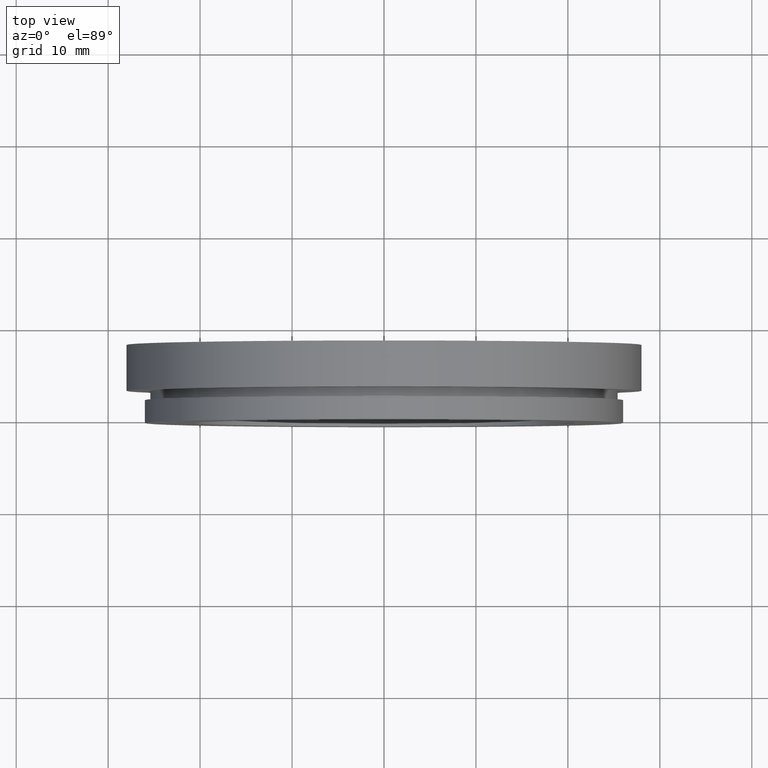
[diagram: clean part render]
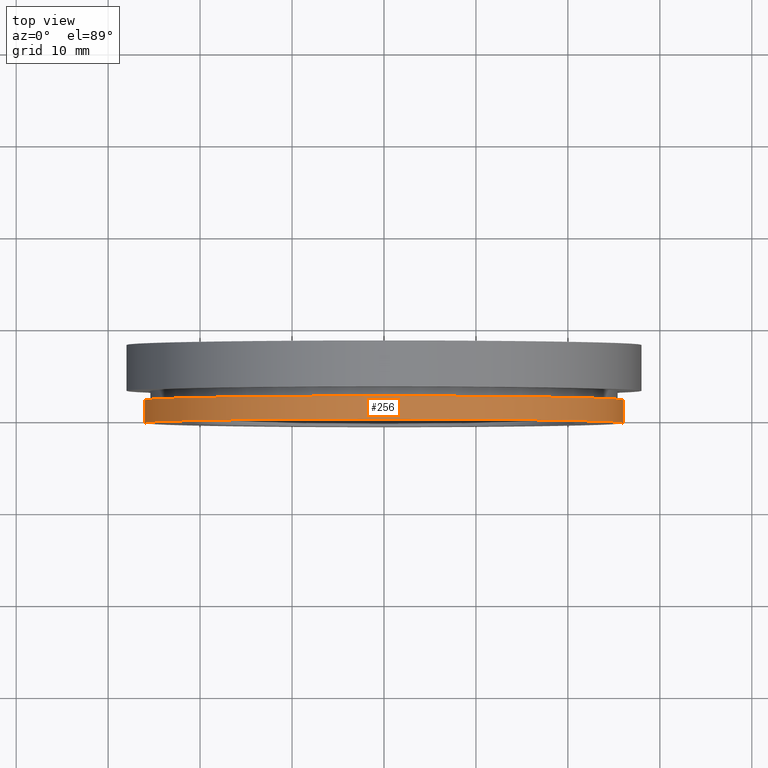
[diagram: same view with one face highlighted and labeled with its STEP entity id]
A machine part, top view. The second image highlights one B-rep face of the part: STEP entity #256.
In plain terms, the highlighted cylindrical surface (partial cylindrical patch) has radius 26 mm, axis along (-0, 1, -0).
Its self-contained STEP definition (entity closure, byte-faithful):
#4 = CARTESIAN_POINT ( 'NONE',  ( -25.99999999999999600, 16.88601823708207300, 0.0000000000000000000 ) ) ;
#25 = DIRECTION ( 'NONE',  ( -1.000000000000000000, -1.334402673828313300E-016, 0.0000000000000000000 ) ) ;
#33 = AXIS2_PLACEMENT_3D ( 'NONE', #324, #289, #322 ) ;
#46 = CARTESIAN_POINT ( 'NONE',  ( -25.99999999999999300, -0.5454644111196717000, 0.0000000000000000000 ) ) ;
#52 = EDGE_CURVE ( 'NONE', #115, #164, #133, .T. ) ;
#67 = VECTOR ( 'NONE', #177, 1000.000000000000000 ) ;
#88 = VECTOR ( 'NONE', #380, 1000.000000000000000 ) ;
#95 = EDGE_CURVE ( 'NONE', #96, #164, #311, .T. ) ;
#96 = VERTEX_POINT ( 'NONE', #321 ) ;
#104 = ORIENTED_EDGE ( 'NONE', *, *, #95, .F. ) ;
#112 = ORIENTED_EDGE ( 'NONE', *, *, #153, .T. ) ;
#115 = VERTEX_POINT ( 'NONE', #418 ) ;
#127 = EDGE_LOOP ( 'NONE', ( #112, #301, #104, #194 ) ) ;
#133 = LINE ( 'NONE', #350, #88 ) ;
#144 = CIRCLE ( 'NONE', #349, 25.99999999999999600 ) ;
#153 = EDGE_CURVE ( 'NONE', #381, #115, #144, .T. ) ;
#157 = CARTESIAN_POINT ( 'NONE',  ( 26.00000000000000000, 1.954535588880336600, 3.184081677783117800E-015 ) ) ;
#160 = FACE_OUTER_BOUND ( 'NONE', #127, .T. ) ;
#164 = VERTEX_POINT ( 'NONE', #157 ) ;
#173 = DIRECTION ( 'NONE',  ( -1.224646799147351000E-016, 1.000000000000000000, -0.0000000000000000000 ) ) ;
#177 = DIRECTION ( 'NONE',  ( -1.224646799147351000E-016, 1.000000000000000000, -0.0000000000000000000 ) ) ;
#194 = ORIENTED_EDGE ( 'NONE', *, *, #300, .F. ) ;
#199 = CARTESIAN_POINT ( 'NONE',  ( 0.0000000000000000000, 16.88601823708207700, 0.0000000000000000000 ) ) ;
#204 = DIRECTION ( 'NONE',  ( -1.224646799147351000E-016, 1.000000000000000000, -0.0000000000000000000 ) ) ;
#256 = ADVANCED_FACE ( 'NONE', ( #160 ), #367, .T. ) ;
#276 = AXIS2_PLACEMENT_3D ( 'NONE', #199, #173, #25 ) ;
#289 = DIRECTION ( 'NONE',  ( -1.224646799147351000E-016, 1.000000000000000000, -0.0000000000000000000 ) ) ;
#292 = DIRECTION ( 'NONE',  ( -1.000000000000000000, -1.209302423156908900E-016, 0.0000000000000000000 ) ) ;
#300 = EDGE_CURVE ( 'NONE', #381, #96, #328, .T. ) ;
#301 = ORIENTED_EDGE ( 'NONE', *, *, #52, .T. ) ;
#311 = CIRCLE ( 'NONE', #33, 25.99999999999999600 ) ;
#321 = CARTESIAN_POINT ( 'NONE',  ( -25.99999999999999300, 1.954535588880330600, 0.0000000000000000000 ) ) ;
#322 = DIRECTION ( 'NONE',  ( -1.000000000000000000, -1.167602339599774200E-016, 0.0000000000000000000 ) ) ;
#324 = CARTESIAN_POINT ( 'NONE',  ( 1.828579243164447600E-015, 1.954535588880333700, 0.0000000000000000000 ) ) ;
#328 = LINE ( 'NONE', #4, #67 ) ;
#349 = AXIS2_PLACEMENT_3D ( 'NONE', #354, #204, #292 ) ;
#350 = CARTESIAN_POINT ( 'NONE',  ( 25.99999999999999600, 16.88601823708208000, 3.184081677783117800E-015 ) ) ;
#354 = CARTESIAN_POINT ( 'NONE',  ( 2.134740942951285500E-015, -0.5454644111196684800, 0.0000000000000000000 ) ) ;
#367 = CYLINDRICAL_SURFACE ( 'NONE', #276, 25.99999999999999600 ) ;
#380 = DIRECTION ( 'NONE',  ( -1.224646799147351000E-016, 1.000000000000000000, -0.0000000000000000000 ) ) ;
#381 = VERTEX_POINT ( 'NONE', #46 ) ;
#418 = CARTESIAN_POINT ( 'NONE',  ( 26.00000000000000000, -0.5454644111196653700, 3.184081677783117800E-015 ) ) ;